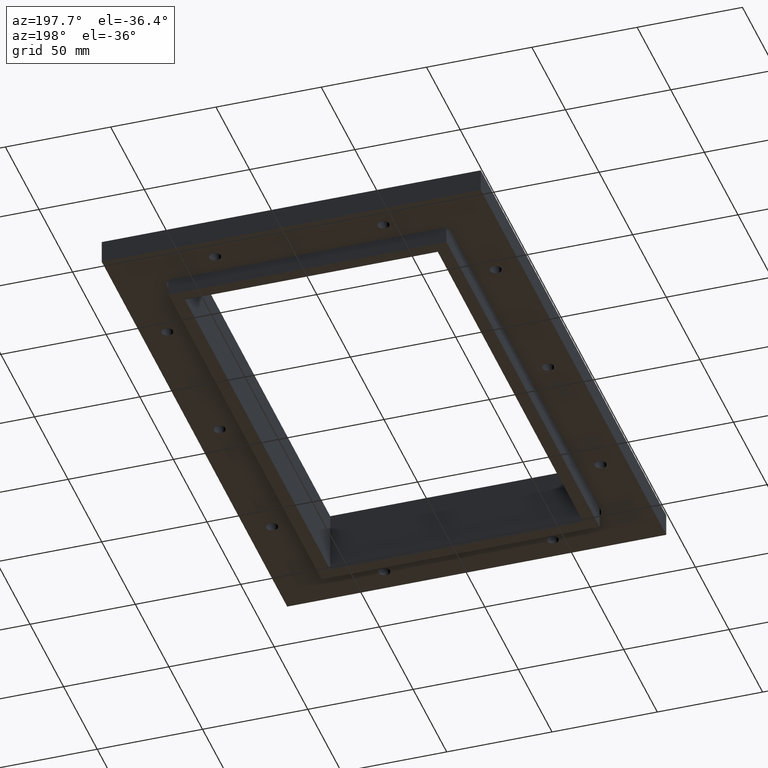
[diagram: clean part render]
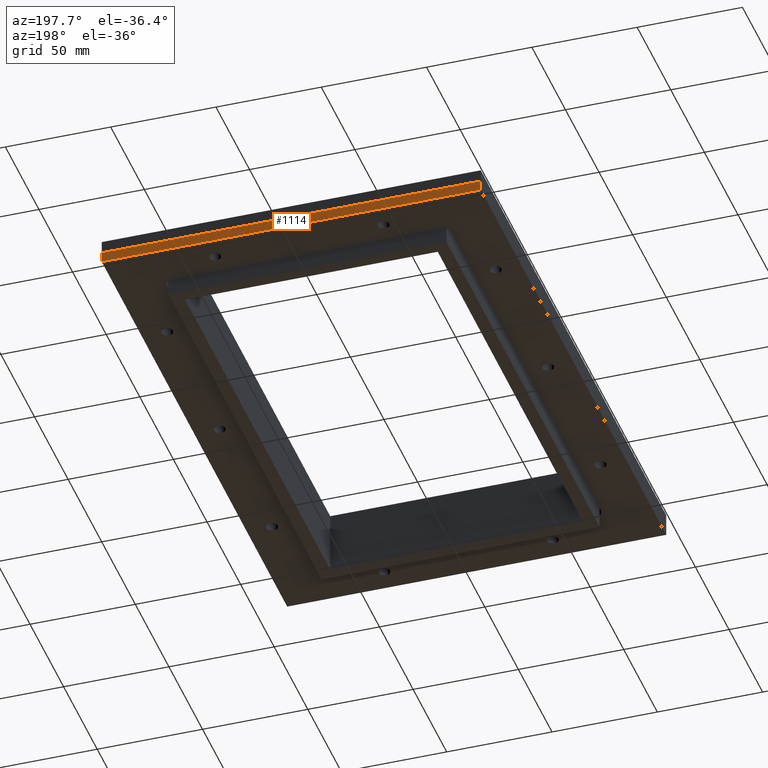
[diagram: same view with one face highlighted and labeled with its STEP entity id]
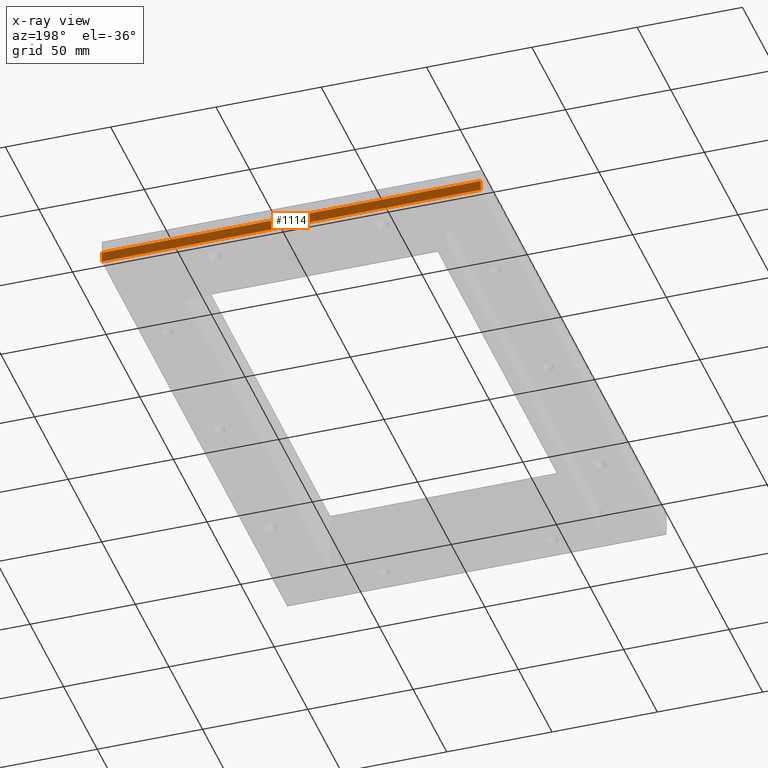
[diagram: x-ray of the same camera — body ghosted, the highlighted face saturated]
A machine part, auxiliary view. The second image highlights one B-rep face of the part: STEP entity #1114.
The next image is the same camera in x-ray: the body ghosted, the highlighted face saturated — about 0% of this face is hidden behind the body in this view.
In plain terms, the highlighted planar face has unit normal (-0, 1, 0).
Its self-contained STEP definition (entity closure, byte-faithful):
#114=PLANE('',#1237);
#168=FACE_OUTER_BOUND('',#246,.T.);
#246=EDGE_LOOP('',(#991,#992,#993,#994));
#356=LINE('',#1816,#452);
#364=LINE('',#1831,#460);
#365=LINE('',#1833,#461);
#366=LINE('',#1834,#462);
#452=VECTOR('',#1521,10.);
#460=VECTOR('',#1533,10.);
#461=VECTOR('',#1536,10.);
#462=VECTOR('',#1537,10.);
#600=VERTEX_POINT('',#1813);
#601=VERTEX_POINT('',#1815);
#605=VERTEX_POINT('',#1827);
#606=VERTEX_POINT('',#1829);
#740=EDGE_CURVE('',#600,#601,#356,.T.);
#748=EDGE_CURVE('',#605,#606,#364,.T.);
#749=EDGE_CURVE('',#600,#605,#365,.T.);
#750=EDGE_CURVE('',#601,#606,#366,.T.);
#991=ORIENTED_EDGE('',*,*,#749,.T.);
#992=ORIENTED_EDGE('',*,*,#748,.T.);
#993=ORIENTED_EDGE('',*,*,#750,.F.);
#994=ORIENTED_EDGE('',*,*,#740,.F.);
#1114=ADVANCED_FACE('',(#168),#114,.T.);
#1237=AXIS2_PLACEMENT_3D('',#1832,#1534,#1535);
#1521=DIRECTION('',(0.,0.,-1.));
#1533=DIRECTION('',(0.,0.,-1.));
#1534=DIRECTION('center_axis',(-1.97372982155583E-16,1.,0.));
#1535=DIRECTION('ref_axis',(1.,1.97372982155584E-16,-2.73910036535074E-32));
#1536=DIRECTION('',(1.,1.97372982155584E-16,-2.73910036535074E-32));
#1537=DIRECTION('',(1.,1.97372982155584E-16,-2.73910036535074E-32));
#1813=CARTESIAN_POINT('',(-89.9999999999999,138.,-3.00000000000003));
#1815=CARTESIAN_POINT('',(-89.9999999999999,138.,-8.00000000000003));
#1816=CARTESIAN_POINT('',(-89.9999999999999,138.,-3.00000000000003));
#1827=CARTESIAN_POINT('',(89.9999999999999,138.,-3.00000000000003));
#1829=CARTESIAN_POINT('',(89.9999999999999,138.,-8.00000000000003));
#1831=CARTESIAN_POINT('',(89.9999999999999,138.,-3.00000000000003));
#1832=CARTESIAN_POINT('Origin',(-89.9999999999999,138.,-3.00000000000003));
#1833=CARTESIAN_POINT('',(-89.9999999999999,138.,-3.00000000000003));
#1834=CARTESIAN_POINT('',(-89.9999999999999,138.,-8.00000000000003));